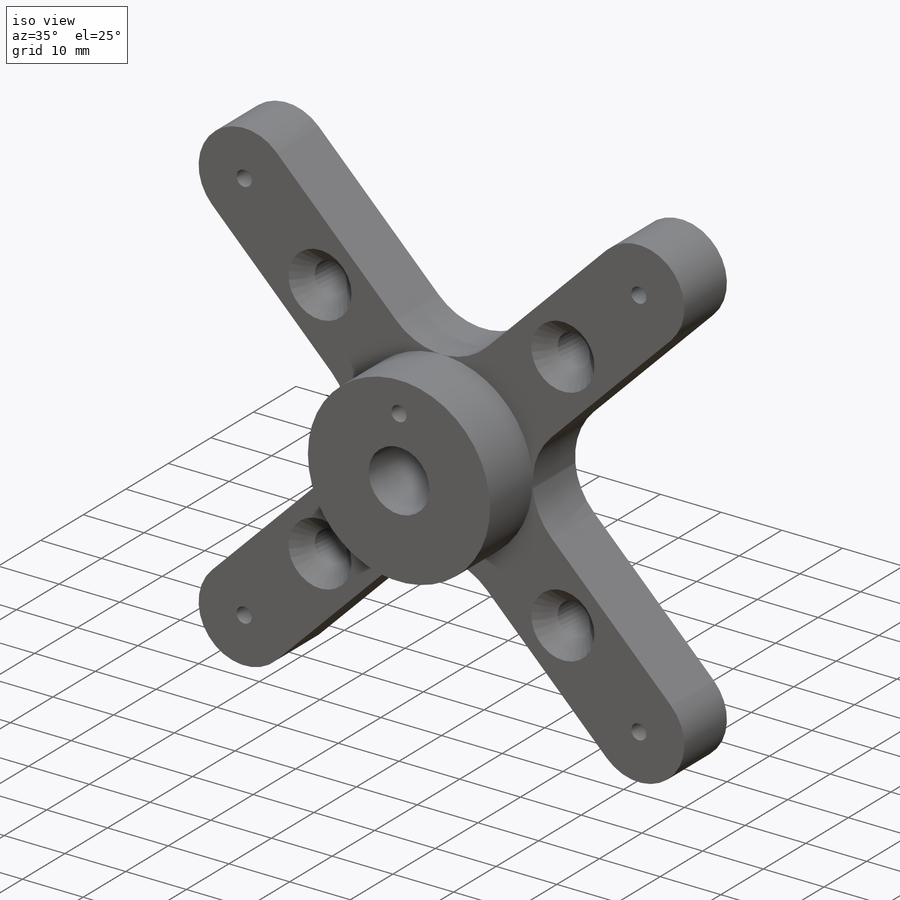
[diagram: iso view]
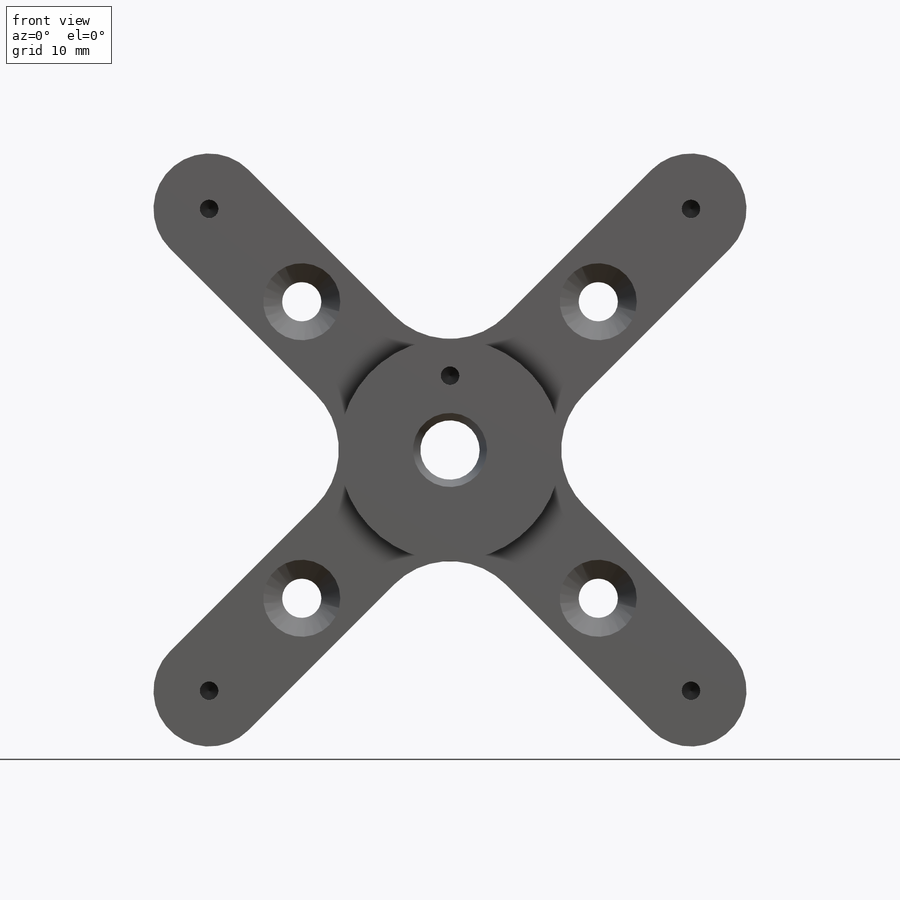
[diagram: front view]
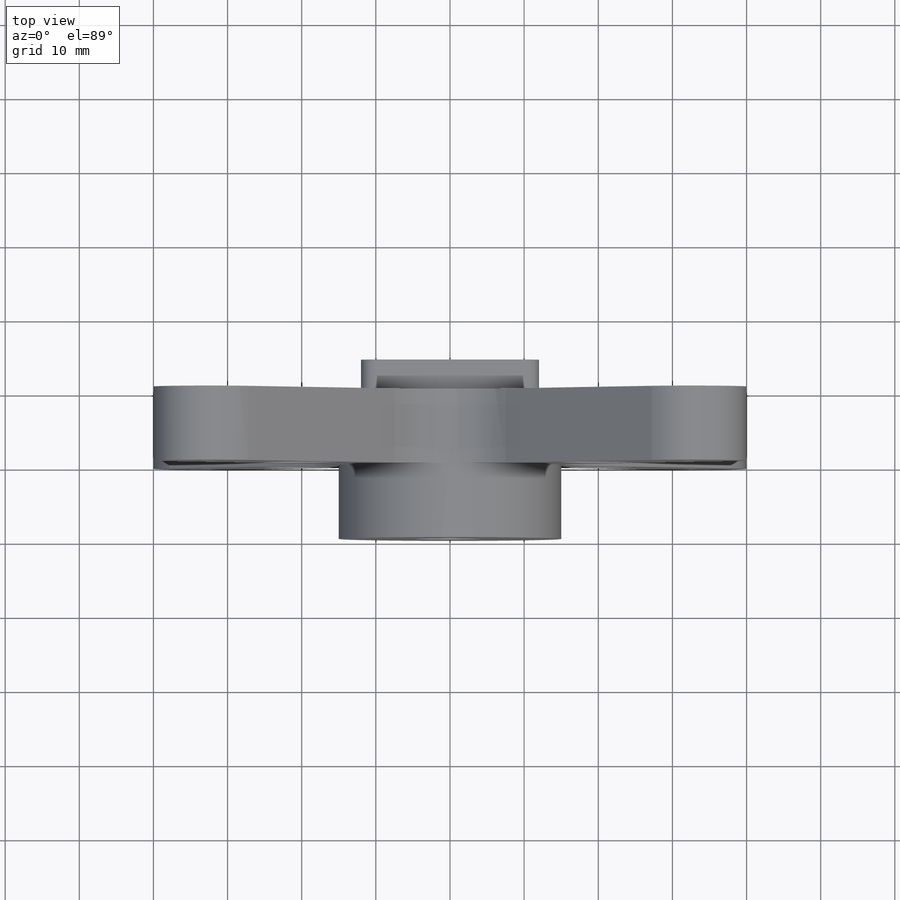
[diagram: top view]
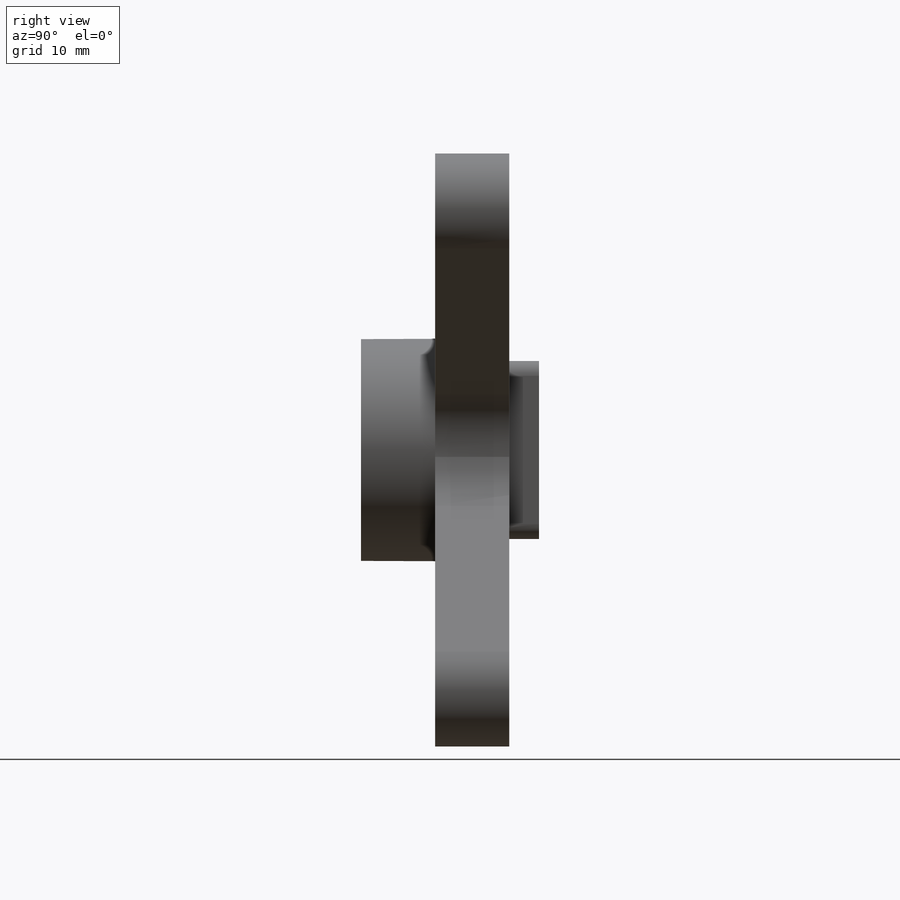
[diagram: right view]
SOLIDWORKS PART (.sldprt)
format: sldprt  version: not decoded by parser v0  size: 602,624 bytes
history: native  units: mm
features: sketch x14, thread x5, plane x3, extrude x3, hole x3, cut_extrude x2, material x1, chamfer x1 (+10 scaffold rows collapsed)
feature tree (42):
  scaffold x10  (default folders/planes/origin — collapsed)
  material  "Латунь"
  plane  "Спереди"
  plane  "Сверху"
  plane  "Справа"
  sketch  "Sketch1"  dims[c1.D2=~19.175741mm c1.D4=30.0mm c1.D1=80.0mm c2.D2=65.0mm c2.D3=7.5mm c2.D4=5.5mm c2.D5=5.5mm]
  extrude  "Boss-Extrude1"  Depth=10mm
  sketch  "Sketch2"  dims[c1.D1=1.0mm c1.D3=2.0mm c1.D4=2.0mm c2.D1=24.0mm c2.D2=24.0mm c2.D4=24.0mm]
  extrude  "Boss-Extrude2"  Depth=4mm
  hole  "CSK for M5 Flat Head Machine Screw1"  Diameter=5.3mm Depth=14mm
  sketch  "Sketch5"  dims[D1=40.0mm]
  sketch  "Sketch4"  dims[hole-wizard template sketch: 55 standard entries collapsed; hole parameters kept: c17.Thru Hole Depth=14.0mm c17.Near C'Sink Dia.=10.4mm c17.D4=~3.666174mm c17.Near C'Sink Angle=90.0deg]
  sketch  "Sketch11"  dims[D1=~11.900646mm]
  extrude  "Boss-Extrude3"  Depth=10mm
  sketch  "Sketch10"  dims[D1=~8.428285mm]
  cut_extrude  "Cut-Extrude2"  Depth=4mm
  sketch  "Sketch12"  dims[D1=4.0mm]
  sketch  "Sketch13"  dims[D1=2.5mm]
  sketch  "Sketch15"  dims[D1=65.0mm]
  hole  "Отверстие обработанное метчиком M3x0.51"  Diameter=2.5mm Depth=7.5mm
  sketch  "Sketch17"
  sketch  "Sketch16"  dims[hole-wizard template sketch: 50 standard entries collapsed; hole parameters above]
  thread  "Отверстие резьбы1"  Diameter=0mm  [1 undecoded]
  thread  "Отверстие резьбы2"  Diameter=0mm  [1 undecoded]
  thread  "Отверстие резьбы3"  Diameter=0mm  [1 undecoded]
  thread  "Отверстие резьбы4"  Diameter=0mm  [1 undecoded]
  sketch  "Sketch18"
  hole  "M3x0.5 Tapped Hole2"  Diameter=2.5mm Depth=8.5mm
  sketch  "Sketch20"
  sketch  "Sketch21"  dims[hole-wizard template sketch: 50 standard entries collapsed; hole parameters above]
  thread  "Hole Thread5"  Diameter=7mm  [1 undecoded]
  chamfer  "Chamfer1"  Distance=0.25mm Angle=45deg
  cut_extrude  "Вырез-Вытянуть1"  Depth=20mm
decode coverage: 25 of 28 modeling features carry decoded parameters
note: ~ marks probable driven/reference dimensions
note: 5 parameter values undecoded
note: suppression state not decoded; provenance and decode notes live in map.json
